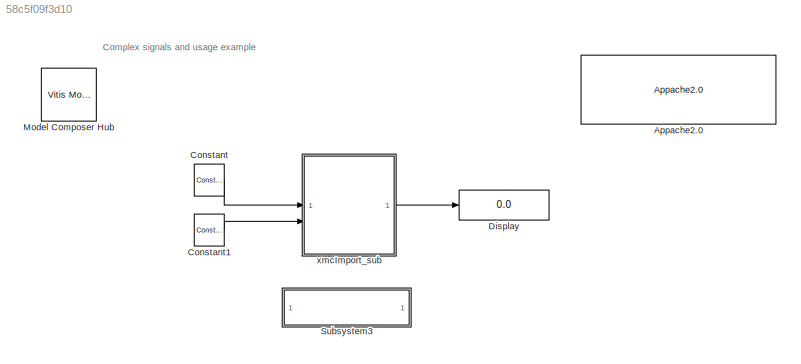
MODEL slx_58c5f09f3d10
KIND model
CONFIG AbsTol = auto
CONFIG EnableMultiTasking = on
CONFIG FixedStep = auto
CONFIG MaxStep = auto
CONFIG MinStep = auto
CONFIG RelTol = 1e-3
CONFIG SampleTimeConstraint = Unconstrained
CONFIG SolverName = VariableStepAuto
CONFIG StartTime = 0.0
CONFIG StopTime = 10.0
BLOCK [Reference] Appache2.0  REF=vmcUtilities/Appache2.0
  SourceBlock = vmcUtilities/Appache2.0
  SourceType = DocBlock
  UserDataPersistent = on
BLOCK [Reference] Constant  REF=hlsBasic/Constant
  SourceBlock = hlsBasic/Constant
  SourceType = Constant
BLOCK [Reference] Constant1  REF=hlsBasic/Constant
  SourceBlock = hlsBasic/Constant
  SourceType = Constant
BLOCK [Display] Display
  Decimation = 1
BLOCK [Reference] Model Composer Hub  REF=vmcUtilities/Vitis Model Composer Hub
  SourceBlock = vmcUtilities/Vitis Model Composer Hub
  SourceType = VMC Hub
  Tag = genX
  UserDataPersistent = on
BLOCK [SubSystem] Subsystem3
  OpenFcn = xmcOpenFileEx
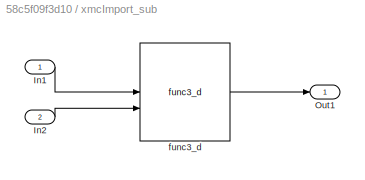
BLOCK [SubSystem] xmcImport_sub
BLOCK [Inport] xmcImport_sub/In1
BLOCK [Inport] xmcImport_sub/In2
  Port = 2
BLOCK [Outport] xmcImport_sub/Out1
BLOCK [Reference] xmcImport_sub/func3_d  REF=fixedpoint_complex_3_lib/func3_d
  SourceBlock = fixedpoint_complex_3_lib/func3_d
  SourceType = Import Function
ANNOTATION (root): Complex signals and usage example
LINE Constant1:1 -> xmcImport_sub:2
LINE Constant:1 -> xmcImport_sub:1
LINE xmcImport_sub/In1:1 -> xmcImport_sub/func3_d:1
LINE xmcImport_sub/In2:1 -> xmcImport_sub/func3_d:2
LINE xmcImport_sub/func3_d:1 -> xmcImport_sub/Out1:1
LINE xmcImport_sub:1 -> Display:1
